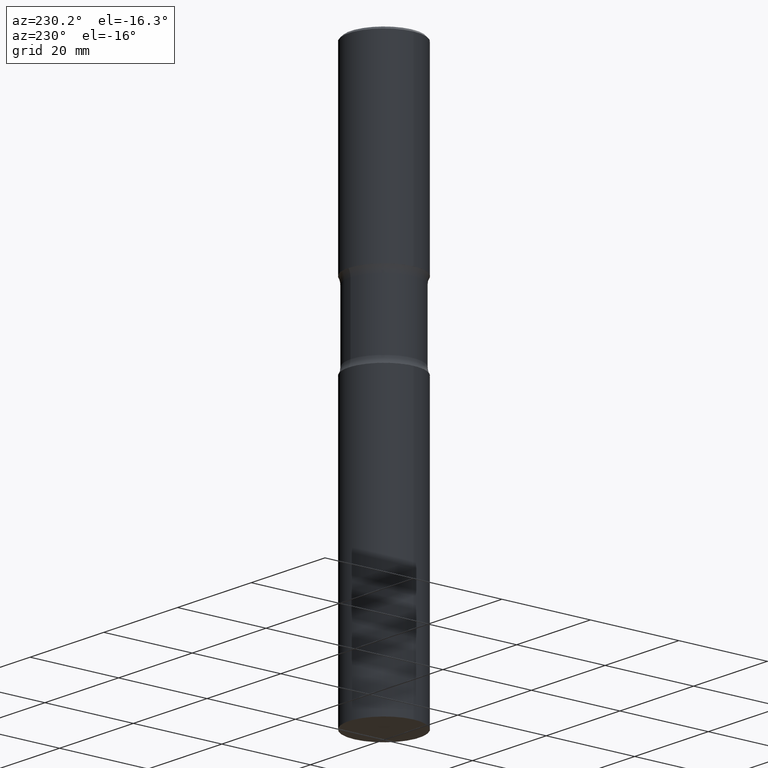
[diagram: clean part render]
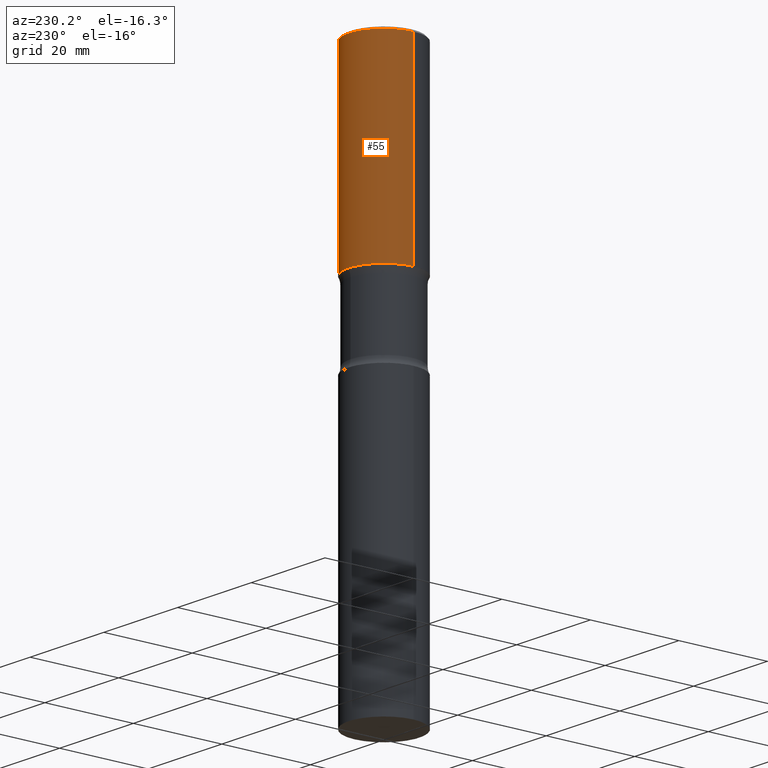
[diagram: same view with one face highlighted and labeled with its STEP entity id]
A machine part, auxiliary view. The second image highlights one B-rep face of the part: STEP entity #55.
In plain terms, the highlighted cylindrical surface (partial cylindrical patch) has radius 7.9997 mm, axis along (-0, 0, 1).
Its self-contained STEP definition (entity closure, byte-faithful):
#14 = VERTEX_POINT ( 'NONE', #68 ) ;
#24 = FACE_OUTER_BOUND ( 'NONE', #440, .T. ) ;
#48 = DIRECTION ( 'NONE',  ( 1.000000000000000000, -6.982962677686265922E-15, 0.000000000000000000 ) ) ;
#55 = ADVANCED_FACE ( 'NONE', ( #24 ), #150, .T. ) ;
#66 = ORIENTED_EDGE ( 'NONE', *, *, #250, .T. ) ;
#68 = CARTESIAN_POINT ( 'NONE',  ( -0.3149499999999998967, 2.129454468560425784E-15, -0.02000000000000006981 ) ) ;
#70 = DIRECTION ( 'NONE',  ( -2.445468806185136877E-29, 3.491481338843145188E-15, 1.000000000000000000 ) ) ;
#98 = VERTEX_POINT ( 'NONE', #495 ) ;
#101 = AXIS2_PLACEMENT_3D ( 'NONE', #346, #507, #504 ) ;
#103 = VERTEX_POINT ( 'NONE', #297 ) ;
#112 = VECTOR ( 'NONE', #425, 39.37007874015748143 ) ;
#121 = VECTOR ( 'NONE', #70, 39.37007874015748143 ) ;
#150 = CYLINDRICAL_SURFACE ( 'NONE', #292, 0.3149499999999999522 ) ;
#178 = ORIENTED_EDGE ( 'NONE', *, *, #237, .T. ) ;
#184 = DIRECTION ( 'NONE',  ( 1.000000000000000000, -6.982962677686266711E-15, 4.876176775795935232E-29 ) ) ;
#195 = AXIS2_PLACEMENT_3D ( 'NONE', #236, #385, #48 ) ;
#199 = CARTESIAN_POINT ( 'NONE',  ( 0.3149500000000000077, -8.110362001998734458E-15, -1.692999999999999616 ) ) ;
#208 = CIRCLE ( 'NONE', #195, 0.3149499999999998967 ) ;
#236 = CARTESIAN_POINT ( 'NONE',  ( 4.890937612370289799E-31, -6.982962677686315028E-17, -0.02000000000000006981 ) ) ;
#237 = EDGE_CURVE ( 'NONE', #103, #14, #461, .T. ) ;
#247 = EDGE_CURVE ( 'NONE', #98, #14, #208, .T. ) ;
#250 = EDGE_CURVE ( 'NONE', #291, #103, #390, .T. ) ;
#263 = ORIENTED_EDGE ( 'NONE', *, *, #471, .F. ) ;
#271 = DIRECTION ( 'NONE',  ( -2.445468806185136597E-29, 3.491481338843145583E-15, 1.000000000000000000 ) ) ;
#291 = VERTEX_POINT ( 'NONE', #199 ) ;
#292 = AXIS2_PLACEMENT_3D ( 'NONE', #499, #271, #184 ) ;
#294 = CARTESIAN_POINT ( 'NONE',  ( 0.3149499999999999522, -2.199284095337289476E-15, 1.535751875536929569E-29 ) ) ;
#296 = LINE ( 'NONE', #294, #121 ) ;
#297 = CARTESIAN_POINT ( 'NONE',  ( -0.3149500000000000077, -7.525994204427177605E-16, -1.692999999999999616 ) ) ;
#346 = CARTESIAN_POINT ( 'NONE',  ( 4.140178688871434900E-29, -5.911077906661444587E-15, -1.692999999999999616 ) ) ;
#385 = DIRECTION ( 'NONE',  ( -2.445468806185136597E-29, 3.491481338843145583E-15, 1.000000000000000000 ) ) ;
#387 = CARTESIAN_POINT ( 'NONE',  ( -0.3149499999999999522, 2.237854346276435196E-15, -1.549218606675782116E-29 ) ) ;
#390 = CIRCLE ( 'NONE', #101, 0.3149500000000000077 ) ;
#425 = DIRECTION ( 'NONE',  ( -2.445468806185136877E-29, 3.491481338843145188E-15, 1.000000000000000000 ) ) ;
#440 = EDGE_LOOP ( 'NONE', ( #66, #178, #488, #263 ) ) ;
#461 = LINE ( 'NONE', #387, #112 ) ;
#471 = EDGE_CURVE ( 'NONE', #291, #98, #296, .T. ) ;
#488 = ORIENTED_EDGE ( 'NONE', *, *, #247, .F. ) ;
#495 = CARTESIAN_POINT ( 'NONE',  ( 0.3149499999999998967, -2.230543471175006266E-15, -0.02000000000000006981 ) ) ;
#499 = CARTESIAN_POINT ( 'NONE',  ( 0.000000000000000000, 0.000000000000000000, 0.000000000000000000 ) ) ;
#504 = DIRECTION ( 'NONE',  ( 1.000000000000000000, -6.982962677686266711E-15, 0.000000000000000000 ) ) ;
#507 = DIRECTION ( 'NONE',  ( -2.445468806185136597E-29, 3.491481338843145583E-15, 1.000000000000000000 ) ) ;